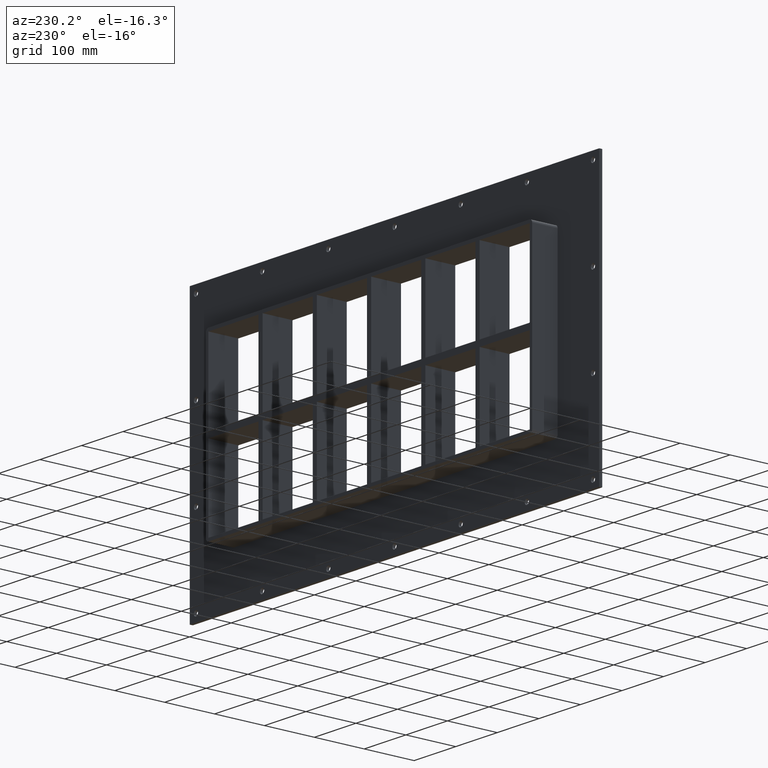
[diagram: clean part render]
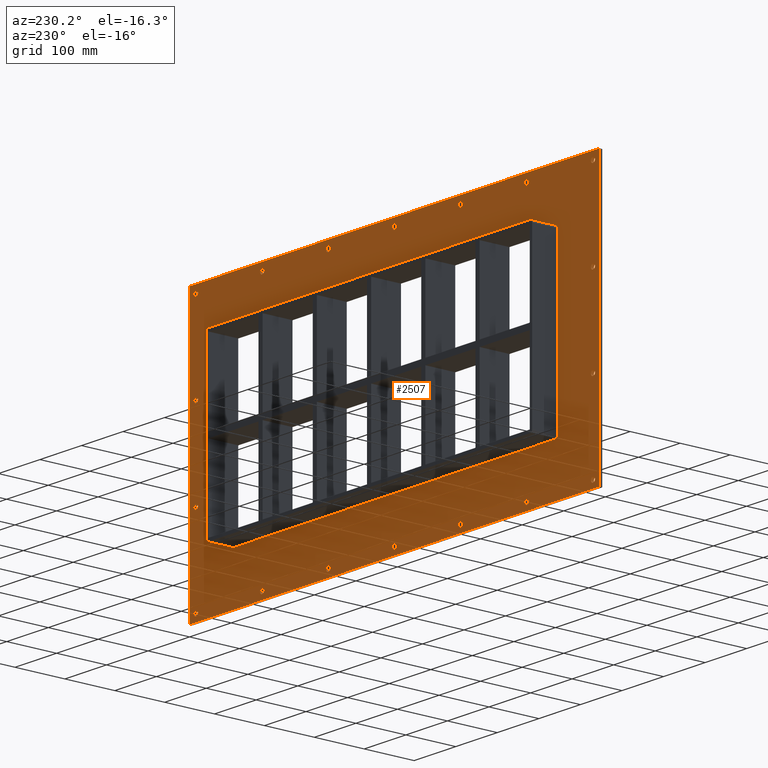
[diagram: same view with one face highlighted and labeled with its STEP entity id]
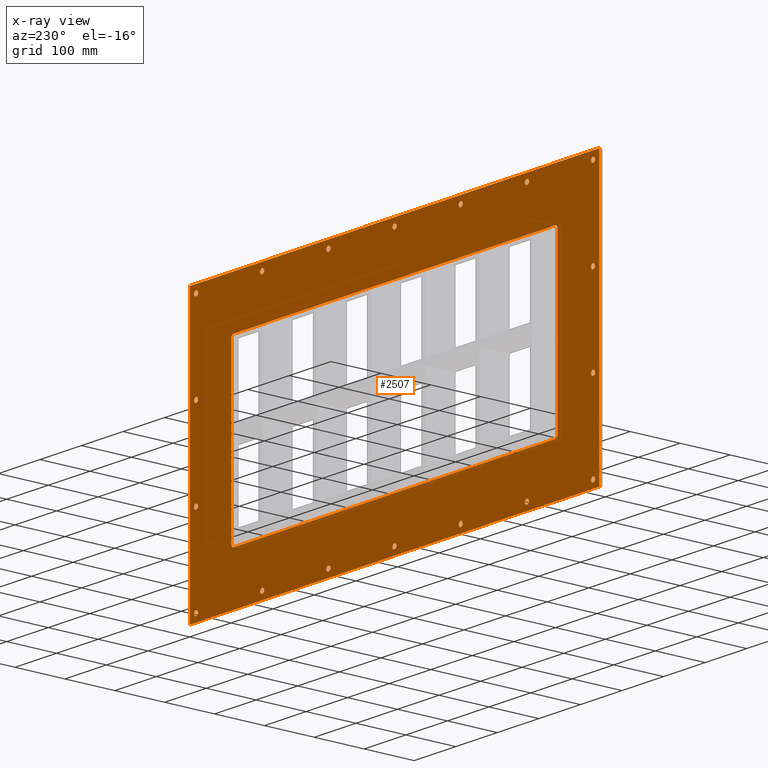
[diagram: x-ray of the same camera — body ghosted, the highlighted face saturated]
A machine part, auxiliary view. The second image highlights one B-rep face of the part: STEP entity #2507.
The next image is the same camera in x-ray: the body ghosted, the highlighted face saturated — about 0% of this face is hidden behind the body in this view.
In plain terms, the highlighted planar face has unit normal (0, 1, 0).
Its self-contained STEP definition (entity closure, byte-faithful):
#73=CARTESIAN_POINT('',(-482.50000000000006,5.999999999999943,-256.5));
#74=VERTEX_POINT('',#73);
#75=CARTESIAN_POINT('',(-477.50000000000006,5.999999999999943,-256.5));
#76=DIRECTION('',(0.0,-1.0,0.0));
#77=DIRECTION('',(1.0,0.0,0.0));
#78=AXIS2_PLACEMENT_3D('',#75,#76,#77);
#79=CIRCLE('',#78,5.0);
#80=EDGE_CURVE('',#74,#74,#79,.T.);
#101=CARTESIAN_POINT('',(472.69999999999987,5.999999999999943,-85.499999999999943));
#102=VERTEX_POINT('',#101);
#103=CARTESIAN_POINT('',(477.69999999999987,5.999999999999943,-85.499999999999943));
#104=DIRECTION('',(0.0,-1.0,0.0));
#105=DIRECTION('',(1.0,0.0,0.0));
#106=AXIS2_PLACEMENT_3D('',#103,#104,#105);
#107=CIRCLE('',#106,5.0);
#108=EDGE_CURVE('',#102,#102,#107,.T.);
#129=CARTESIAN_POINT('',(-482.50000000000006,5.999999999999943,-85.499999999999943));
#130=VERTEX_POINT('',#129);
#131=CARTESIAN_POINT('',(-477.50000000000006,5.999999999999943,-85.499999999999943));
#132=DIRECTION('',(0.0,-1.0,0.0));
#133=DIRECTION('',(1.0,0.0,0.0));
#134=AXIS2_PLACEMENT_3D('',#131,#132,#133);
#135=CIRCLE('',#134,5.0);
#136=EDGE_CURVE('',#130,#130,#135,.T.);
#157=CARTESIAN_POINT('',(472.69999999999987,5.999999999999943,85.500000000000043));
#158=VERTEX_POINT('',#157);
#159=CARTESIAN_POINT('',(477.69999999999987,5.999999999999943,85.500000000000043));
#160=DIRECTION('',(0.0,-1.0,0.0));
#161=DIRECTION('',(1.0,0.0,0.0));
#162=AXIS2_PLACEMENT_3D('',#159,#160,#161);
#163=CIRCLE('',#162,5.0);
#164=EDGE_CURVE('',#158,#158,#163,.T.);
#185=CARTESIAN_POINT('',(-482.50000000000006,5.999999999999943,85.500000000000043));
#186=VERTEX_POINT('',#185);
#187=CARTESIAN_POINT('',(-477.50000000000006,5.999999999999943,85.500000000000043));
#188=DIRECTION('',(0.0,-1.0,0.0));
#189=DIRECTION('',(1.0,0.0,0.0));
#190=AXIS2_PLACEMENT_3D('',#187,#188,#189);
#191=CIRCLE('',#190,5.0);
#192=EDGE_CURVE('',#186,#186,#191,.T.);
#213=CARTESIAN_POINT('',(-323.30000000000007,5.999999999999943,256.5));
#214=VERTEX_POINT('',#213);
#215=CARTESIAN_POINT('',(-318.30000000000007,5.999999999999943,256.5));
#216=DIRECTION('',(0.0,-1.0,0.0));
#217=DIRECTION('',(1.0,0.0,0.0));
#218=AXIS2_PLACEMENT_3D('',#215,#216,#217);
#219=CIRCLE('',#218,5.0);
#220=EDGE_CURVE('',#214,#214,#219,.T.);
#241=CARTESIAN_POINT('',(-323.30000000000007,5.999999999999943,-256.5));
#242=VERTEX_POINT('',#241);
#243=CARTESIAN_POINT('',(-318.30000000000007,5.999999999999943,-256.5));
#244=DIRECTION('',(0.0,-1.0,0.0));
#245=DIRECTION('',(1.0,0.0,0.0));
#246=AXIS2_PLACEMENT_3D('',#243,#244,#245);
#247=CIRCLE('',#246,5.0);
#248=EDGE_CURVE('',#242,#242,#247,.T.);
#269=CARTESIAN_POINT('',(-164.10000000000011,5.999999999999943,256.5));
#270=VERTEX_POINT('',#269);
#271=CARTESIAN_POINT('',(-159.10000000000008,5.999999999999943,256.5));
#272=DIRECTION('',(0.0,-1.0,0.0));
#273=DIRECTION('',(1.0,0.0,0.0));
#274=AXIS2_PLACEMENT_3D('',#271,#272,#273);
#275=CIRCLE('',#274,5.0);
#276=EDGE_CURVE('',#270,#270,#275,.T.);
#297=CARTESIAN_POINT('',(-164.10000000000011,5.999999999999943,-256.5));
#298=VERTEX_POINT('',#297);
#299=CARTESIAN_POINT('',(-159.10000000000008,5.999999999999943,-256.5));
#300=DIRECTION('',(0.0,-1.0,0.0));
#301=DIRECTION('',(1.0,0.0,0.0));
#302=AXIS2_PLACEMENT_3D('',#299,#300,#301);
#303=CIRCLE('',#302,5.0);
#304=EDGE_CURVE('',#298,#298,#303,.T.);
#325=CARTESIAN_POINT('',(-4.900000000000073,5.999999999999943,256.5));
#326=VERTEX_POINT('',#325);
#327=CARTESIAN_POINT('',(0.099999999999927,5.999999999999943,256.5));
#328=DIRECTION('',(0.0,-1.0,0.0));
#329=DIRECTION('',(1.0,0.0,0.0));
#330=AXIS2_PLACEMENT_3D('',#327,#328,#329);
#331=CIRCLE('',#330,5.0);
#332=EDGE_CURVE('',#326,#326,#331,.T.);
#353=CARTESIAN_POINT('',(-4.900000000000073,5.999999999999943,-256.5));
#354=VERTEX_POINT('',#353);
#355=CARTESIAN_POINT('',(0.099999999999927,5.999999999999943,-256.5));
#356=DIRECTION('',(0.0,-1.0,0.0));
#357=DIRECTION('',(1.0,0.0,0.0));
#358=AXIS2_PLACEMENT_3D('',#355,#356,#357);
#359=CIRCLE('',#358,5.0);
#360=EDGE_CURVE('',#354,#354,#359,.T.);
#381=CARTESIAN_POINT('',(154.29999999999987,5.999999999999943,256.5));
#382=VERTEX_POINT('',#381);
#383=CARTESIAN_POINT('',(159.29999999999987,5.999999999999943,256.5));
#384=DIRECTION('',(0.0,-1.0,0.0));
#385=DIRECTION('',(1.0,0.0,0.0));
#386=AXIS2_PLACEMENT_3D('',#383,#384,#385);
#387=CIRCLE('',#386,5.0);
#388=EDGE_CURVE('',#382,#382,#387,.T.);
#409=CARTESIAN_POINT('',(154.29999999999987,5.999999999999943,-256.5));
#410=VERTEX_POINT('',#409);
#411=CARTESIAN_POINT('',(159.29999999999987,5.999999999999943,-256.5));
#412=DIRECTION('',(0.0,-1.0,0.0));
#413=DIRECTION('',(1.0,0.0,0.0));
#414=AXIS2_PLACEMENT_3D('',#411,#412,#413);
#415=CIRCLE('',#414,5.0);
#416=EDGE_CURVE('',#410,#410,#415,.T.);
#437=CARTESIAN_POINT('',(313.49999999999989,5.999999999999943,256.5));
#438=VERTEX_POINT('',#437);
#439=CARTESIAN_POINT('',(318.49999999999989,5.999999999999943,256.5));
#440=DIRECTION('',(0.0,-1.0,0.0));
#441=DIRECTION('',(1.0,0.0,0.0));
#442=AXIS2_PLACEMENT_3D('',#439,#440,#441);
#443=CIRCLE('',#442,5.0);
#444=EDGE_CURVE('',#438,#438,#443,.T.);
#465=CARTESIAN_POINT('',(313.49999999999989,5.999999999999943,-256.5));
#466=VERTEX_POINT('',#465);
#467=CARTESIAN_POINT('',(318.49999999999989,5.999999999999943,-256.5));
#468=DIRECTION('',(0.0,-1.0,0.0));
#469=DIRECTION('',(1.0,0.0,0.0));
#470=AXIS2_PLACEMENT_3D('',#467,#468,#469);
#471=CIRCLE('',#470,5.0);
#472=EDGE_CURVE('',#466,#466,#471,.T.);
#493=CARTESIAN_POINT('',(472.69999999999987,5.999999999999943,-256.5));
#494=VERTEX_POINT('',#493);
#495=CARTESIAN_POINT('',(477.69999999999987,5.999999999999943,-256.5));
#496=DIRECTION('',(0.0,-1.0,0.0));
#497=DIRECTION('',(1.0,0.0,0.0));
#498=AXIS2_PLACEMENT_3D('',#495,#496,#497);
#499=CIRCLE('',#498,5.0);
#500=EDGE_CURVE('',#494,#494,#499,.T.);
#521=CARTESIAN_POINT('',(-482.50000000000006,5.999999999999943,256.5));
#522=VERTEX_POINT('',#521);
#523=CARTESIAN_POINT('',(-477.50000000000006,5.999999999999943,256.5));
#524=DIRECTION('',(0.0,-1.0,0.0));
#525=DIRECTION('',(1.0,0.0,0.0));
#526=AXIS2_PLACEMENT_3D('',#523,#524,#525);
#527=CIRCLE('',#526,5.0);
#528=EDGE_CURVE('',#522,#522,#527,.T.);
#549=CARTESIAN_POINT('',(472.69999999999987,5.999999999999943,256.5));
#550=VERTEX_POINT('',#549);
#551=CARTESIAN_POINT('',(477.69999999999987,5.999999999999943,256.5));
#552=DIRECTION('',(0.0,-1.0,0.0));
#553=DIRECTION('',(1.0,0.0,0.0));
#554=AXIS2_PLACEMENT_3D('',#551,#552,#553);
#555=CIRCLE('',#554,5.0);
#556=EDGE_CURVE('',#550,#550,#555,.T.);
#2344=CARTESIAN_POINT('',(0.0,6.000000000000001,1.747293E-014));
#2345=DIRECTION('',(0.0,1.0,0.0));
#2346=DIRECTION('',(0.0,0.0,1.0));
#2347=AXIS2_PLACEMENT_3D('',#2344,#2345,#2346);
#2348=PLANE('',#2347);
#2349=CARTESIAN_POINT('',(-492.50000000000006,6.000000000000001,271.50000000000006));
#2350=VERTEX_POINT('',#2349);
#2351=CARTESIAN_POINT('',(492.50000000000006,6.000000000000001,271.50000000000006));
#2352=VERTEX_POINT('',#2351);
#2353=CARTESIAN_POINT('',(-492.50000000000006,6.000000000000001,271.50000000000006));
#2354=DIRECTION('',(1.0,0.0,0.0));
#2355=VECTOR('',#2354,985.00000000000011);
#2356=LINE('',#2353,#2355);
#2357=EDGE_CURVE('',#2350,#2352,#2356,.T.);
#2358=ORIENTED_EDGE('',*,*,#2357,.T.);
#2359=CARTESIAN_POINT('',(492.50000000000006,6.000000000000001,-271.50000000000006));
#2360=VERTEX_POINT('',#2359);
#2361=CARTESIAN_POINT('',(492.50000000000006,6.000000000000001,271.50000000000006));
#2362=DIRECTION('',(0.0,0.0,-1.0));
#2363=VECTOR('',#2362,543.00000000000011);
#2364=LINE('',#2361,#2363);
#2365=EDGE_CURVE('',#2352,#2360,#2364,.T.);
#2366=ORIENTED_EDGE('',*,*,#2365,.T.);
#2367=CARTESIAN_POINT('',(-492.50000000000006,6.000000000000001,-271.50000000000006));
#2368=VERTEX_POINT('',#2367);
#2369=CARTESIAN_POINT('',(492.50000000000006,6.000000000000001,-271.5));
#2370=DIRECTION('',(-1.0,0.0,0.0));
#2371=VECTOR('',#2370,985.00000000000011);
#2372=LINE('',#2369,#2371);
#2373=EDGE_CURVE('',#2360,#2368,#2372,.T.);
#2374=ORIENTED_EDGE('',*,*,#2373,.T.);
#2375=CARTESIAN_POINT('',(-492.50000000000006,6.000000000000001,-271.5));
#2376=DIRECTION('',(0.0,0.0,1.0));
#2377=VECTOR('',#2376,543.00000000000011);
#2378=LINE('',#2375,#2377);
#2379=EDGE_CURVE('',#2368,#2350,#2378,.T.);
#2380=ORIENTED_EDGE('',*,*,#2379,.T.);
#2381=EDGE_LOOP('',(#2358,#2366,#2374,#2380));
#2382=FACE_OUTER_BOUND('',#2381,.T.);
#2383=ORIENTED_EDGE('',*,*,#80,.T.);
#2384=EDGE_LOOP('',(#2383));
#2385=FACE_BOUND('',#2384,.T.);
#2386=ORIENTED_EDGE('',*,*,#108,.T.);
#2387=EDGE_LOOP('',(#2386));
#2388=FACE_BOUND('',#2387,.T.);
#2389=ORIENTED_EDGE('',*,*,#136,.T.);
#2390=EDGE_LOOP('',(#2389));
#2391=FACE_BOUND('',#2390,.T.);
#2392=ORIENTED_EDGE('',*,*,#164,.T.);
#2393=EDGE_LOOP('',(#2392));
#2394=FACE_BOUND('',#2393,.T.);
#2395=ORIENTED_EDGE('',*,*,#192,.T.);
#2396=EDGE_LOOP('',(#2395));
#2397=FACE_BOUND('',#2396,.T.);
#2398=ORIENTED_EDGE('',*,*,#220,.T.);
#2399=EDGE_LOOP('',(#2398));
#2400=FACE_BOUND('',#2399,.T.);
#2401=ORIENTED_EDGE('',*,*,#248,.T.);
#2402=EDGE_LOOP('',(#2401));
#2403=FACE_BOUND('',#2402,.T.);
#2404=ORIENTED_EDGE('',*,*,#276,.T.);
#2405=EDGE_LOOP('',(#2404));
#2406=FACE_BOUND('',#2405,.T.);
#2407=ORIENTED_EDGE('',*,*,#304,.T.);
#2408=EDGE_LOOP('',(#2407));
#2409=FACE_BOUND('',#2408,.T.);
#2410=ORIENTED_EDGE('',*,*,#332,.T.);
#2411=EDGE_LOOP('',(#2410));
#2412=FACE_BOUND('',#2411,.T.);
#2413=ORIENTED_EDGE('',*,*,#360,.T.);
#2414=EDGE_LOOP('',(#2413));
#2415=FACE_BOUND('',#2414,.T.);
#2416=ORIENTED_EDGE('',*,*,#388,.T.);
#2417=EDGE_LOOP('',(#2416));
#2418=FACE_BOUND('',#2417,.T.);
#2419=ORIENTED_EDGE('',*,*,#416,.T.);
#2420=EDGE_LOOP('',(#2419));
#2421=FACE_BOUND('',#2420,.T.);
#2422=ORIENTED_EDGE('',*,*,#444,.T.);
#2423=EDGE_LOOP('',(#2422));
#2424=FACE_BOUND('',#2423,.T.);
#2425=ORIENTED_EDGE('',*,*,#472,.T.);
#2426=EDGE_LOOP('',(#2425));
#2427=FACE_BOUND('',#2426,.T.);
#2428=ORIENTED_EDGE('',*,*,#500,.T.);
#2429=EDGE_LOOP('',(#2428));
#2430=FACE_BOUND('',#2429,.T.);
#2431=ORIENTED_EDGE('',*,*,#528,.T.);
#2432=EDGE_LOOP('',(#2431));
#2433=FACE_BOUND('',#2432,.T.);
#2434=ORIENTED_EDGE('',*,*,#556,.T.);
#2435=EDGE_LOOP('',(#2434));
#2436=FACE_BOUND('',#2435,.T.);
#2437=CARTESIAN_POINT('',(-386.50000000000006,6.000000000000001,-171.50000000000006));
#2438=VERTEX_POINT('',#2437);
#2439=CARTESIAN_POINT('',(-392.50000000000011,6.000000000000001,-165.50000000000006));
#2440=VERTEX_POINT('',#2439);
#2441=CARTESIAN_POINT('',(-386.50000000000006,6.000000000000001,-165.50000000000006));
#2442=DIRECTION('',(0.0,1.0,0.0));
#2443=DIRECTION('',(-0.707106781186552,0.0,-0.707106781186543));
#2444=AXIS2_PLACEMENT_3D('',#2441,#2442,#2443);
#2445=CIRCLE('',#2444,6.0);
#2446=EDGE_CURVE('',#2438,#2440,#2445,.T.);
#2447=ORIENTED_EDGE('',*,*,#2446,.F.);
#2448=CARTESIAN_POINT('',(386.50000000000006,6.000000000000001,-171.50000000000006));
#2449=VERTEX_POINT('',#2448);
#2450=CARTESIAN_POINT('',(386.50000000000006,6.000000000000001,-171.50000000000006));
#2451=DIRECTION('',(-1.0,0.0,0.0));
#2452=VECTOR('',#2451,773.0);
#2453=LINE('',#2450,#2452);
#2454=EDGE_CURVE('',#2449,#2438,#2453,.T.);
#2455=ORIENTED_EDGE('',*,*,#2454,.F.);
#2456=CARTESIAN_POINT('',(392.5,6.000000000000001,-165.50000000000006));
#2457=VERTEX_POINT('',#2456);
#2458=CARTESIAN_POINT('',(386.50000000000006,6.000000000000001,-165.50000000000006));
#2459=DIRECTION('',(0.0,1.0,0.0));
#2460=DIRECTION('',(0.707106781186543,0.0,-0.707106781186552));
#2461=AXIS2_PLACEMENT_3D('',#2458,#2459,#2460);
#2462=CIRCLE('',#2461,6.000000000000001);
#2463=EDGE_CURVE('',#2457,#2449,#2462,.T.);
#2464=ORIENTED_EDGE('',*,*,#2463,.F.);
#2465=CARTESIAN_POINT('',(392.5,6.000000000000001,165.49999999999997));
#2466=VERTEX_POINT('',#2465);
#2467=CARTESIAN_POINT('',(392.5,6.000000000000001,165.49999999999997));
#2468=DIRECTION('',(0.0,0.0,-1.0));
#2469=VECTOR('',#2468,331.0);
#2470=LINE('',#2467,#2469);
#2471=EDGE_CURVE('',#2466,#2457,#2470,.T.);
#2472=ORIENTED_EDGE('',*,*,#2471,.F.);
#2473=CARTESIAN_POINT('',(386.49999999999989,6.000000000000001,171.5));
#2474=VERTEX_POINT('',#2473);
#2475=CARTESIAN_POINT('',(386.49999999999989,6.000000000000001,165.49999999999997));
#2476=DIRECTION('',(0.0,1.0,0.0));
#2477=DIRECTION('',(0.707106781186552,0.0,0.707106781186543));
#2478=AXIS2_PLACEMENT_3D('',#2475,#2476,#2477);
#2479=CIRCLE('',#2478,6.0);
#2480=EDGE_CURVE('',#2474,#2466,#2479,.T.);
#2481=ORIENTED_EDGE('',*,*,#2480,.F.);
#2482=CARTESIAN_POINT('',(-386.50000000000023,6.000000000000001,171.5));
#2483=VERTEX_POINT('',#2482);
#2484=CARTESIAN_POINT('',(-386.50000000000017,6.000000000000001,171.5));
#2485=DIRECTION('',(1.0,0.0,0.0));
#2486=VECTOR('',#2485,773.00000000000011);
#2487=LINE('',#2484,#2486);
#2488=EDGE_CURVE('',#2483,#2474,#2487,.T.);
#2489=ORIENTED_EDGE('',*,*,#2488,.F.);
#2490=CARTESIAN_POINT('',(-392.50000000000011,6.000000000000001,165.49999999999997));
#2491=VERTEX_POINT('',#2490);
#2492=CARTESIAN_POINT('',(-386.50000000000023,6.000000000000001,165.49999999999997));
#2493=DIRECTION('',(0.0,1.0,0.0));
#2494=DIRECTION('',(-0.707106781186543,0.0,0.707106781186552));
#2495=AXIS2_PLACEMENT_3D('',#2492,#2493,#2494);
#2496=CIRCLE('',#2495,6.000000000000001);
#2497=EDGE_CURVE('',#2491,#2483,#2496,.T.);
#2498=ORIENTED_EDGE('',*,*,#2497,.F.);
#2499=CARTESIAN_POINT('',(-392.50000000000011,6.000000000000001,-165.50000000000006));
#2500=DIRECTION('',(0.0,0.0,1.0));
#2501=VECTOR('',#2500,331.0);
#2502=LINE('',#2499,#2501);
#2503=EDGE_CURVE('',#2440,#2491,#2502,.T.);
#2504=ORIENTED_EDGE('',*,*,#2503,.F.);
#2505=EDGE_LOOP('',(#2447,#2455,#2464,#2472,#2481,#2489,#2498,#2504));
#2506=FACE_BOUND('',#2505,.T.);
#2507=ADVANCED_FACE('',(#2382,#2385,#2388,#2391,#2394,#2397,#2400,#2403,#2406,#2409,#2412,#2415,#2418,#2421,#2424,#2427,#2430,#2433,#2436,#2506),#2348,.T.);